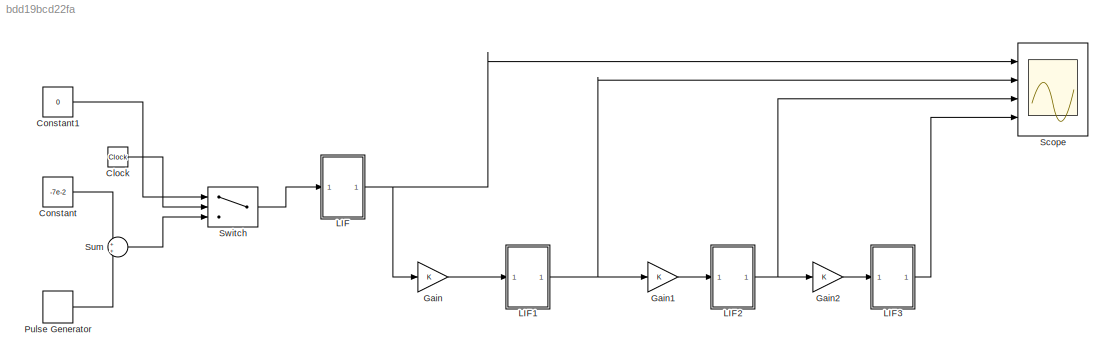
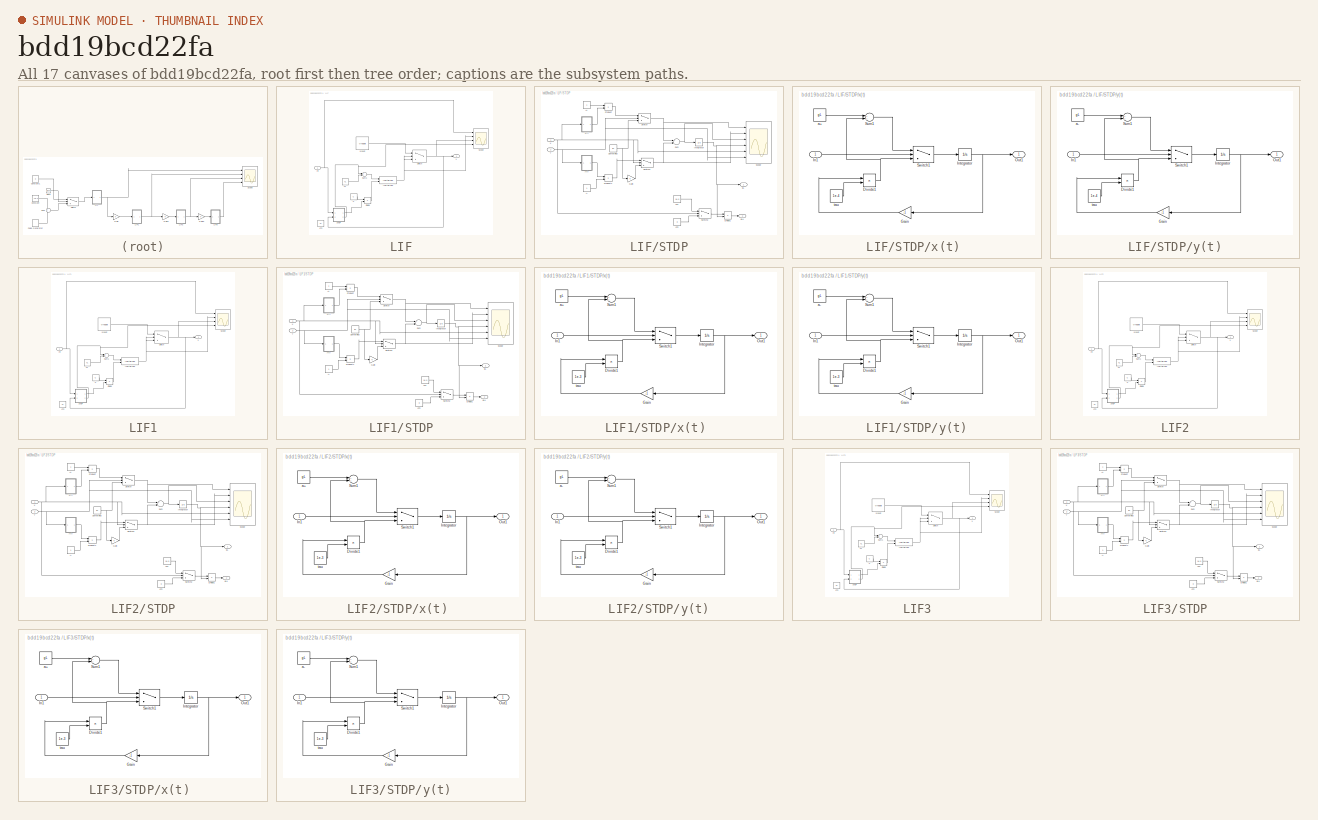
[diagram: thumbnail index - all 17 canvases of the model, root first then tree order]
MODEL slx_bdd19bcd22fa
KIND model
CONFIG AbsTol = auto
CONFIG EnableMultiTasking = off
CONFIG FixedStep = auto
CONFIG MaxStep = auto
CONFIG MinStep = auto
CONFIG RelTol = 1e-3
CONFIG SampleTimeConstraint = Unconstrained
CONFIG Solver = VariableStepAuto
CONFIG SolverName = VariableStepAuto
CONFIG StartTime = 0.0
CONFIG StopTime = 1
BLOCK [Clock] Clock
BLOCK [Constant] Constant
  Value = -7e-2
BLOCK [Constant] Constant1
  Value = 0
BLOCK [Gain] Gain
  OutDataTypeStr = Inherit: Inherit via internal rule
  ParamDataTypeStr = Inherit: Inherit via internal rule
  SaturateOnIntegerOverflow = off
BLOCK [Gain] Gain1
  OutDataTypeStr = Inherit: Inherit via internal rule
  ParamDataTypeStr = Inherit: Inherit via internal rule
  SaturateOnIntegerOverflow = off
BLOCK [Gain] Gain2
  OutDataTypeStr = Inherit: Inherit via internal rule
  ParamDataTypeStr = Inherit: Inherit via internal rule
  SaturateOnIntegerOverflow = off
BLOCK [SubSystem] LIF
  Ports = [1, 1]
  RequestExecContextInheritance = off
BLOCK [Constant] LIF/C
  Value = C
BLOCK [Product] LIF/Divide
  InputSameDT = off
  Inputs = */
  OutDataTypeStr = Inherit: Inherit via internal rule
  Ports = [2, 1]
  RndMeth = Floor
  SaturateOnIntegerOverflow = off
BLOCK [Inport] LIF/Iin
  IconDisplay = Port number
BLOCK [Reference] LIF/Inertial Link  REF=NeuroModelerLibrary/Support/Inertial Link
  Ports = [2, 1]
  SourceBlock = NeuroModelerLibrary/Support/Inertial Link
  SourceType = SubSystem
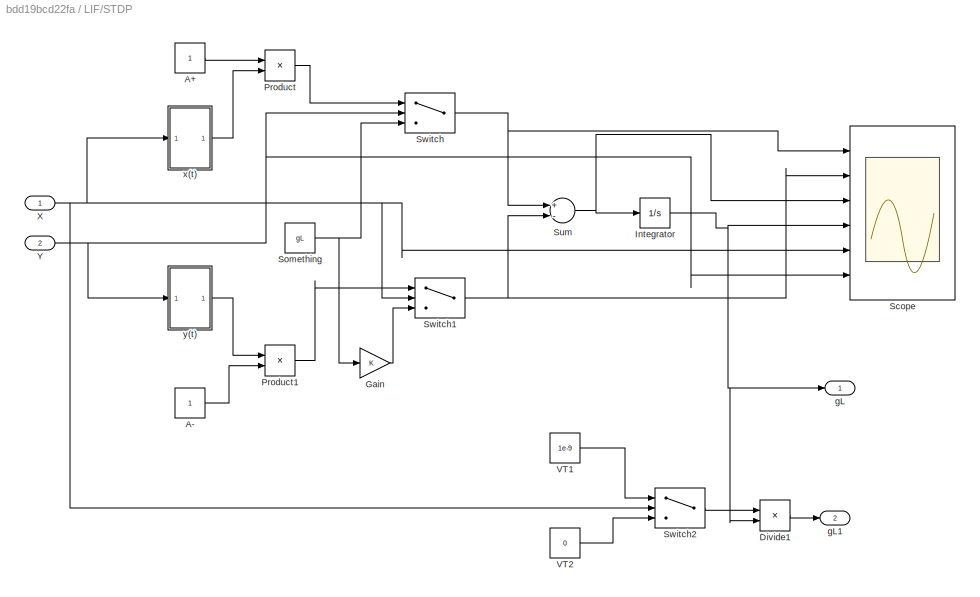
BLOCK [SubSystem] LIF/STDP
  Ports = [2, 2]
  RequestExecContextInheritance = off
BLOCK [Constant] LIF/STDP/A+
BLOCK [Constant] LIF/STDP/A-
BLOCK [Product] LIF/STDP/Divide1
  InputSameDT = off
  Inputs = */
  OutDataTypeStr = Inherit: Inherit via internal rule
  Ports = [2, 1]
  RndMeth = Floor
  SaturateOnIntegerOverflow = off
BLOCK [Gain] LIF/STDP/Gain
  OutDataTypeStr = Inherit: Inherit via internal rule
  ParamDataTypeStr = Inherit: Inherit via internal rule
  SaturateOnIntegerOverflow = off
BLOCK [Integrator] LIF/STDP/Integrator
  InitialCondition = gL
  Ports = [1, 1]
BLOCK [Product] LIF/STDP/Product
  InputSameDT = off
  OutDataTypeStr = Inherit: Inherit via internal rule
  Ports = [2, 1]
  RndMeth = Floor
  SaturateOnIntegerOverflow = off
BLOCK [Product] LIF/STDP/Product1
  InputSameDT = off
  OutDataTypeStr = Inherit: Inherit via internal rule
  Ports = [2, 1]
  RndMeth = Floor
  SaturateOnIntegerOverflow = off
BLOCK [Scope] LIF/STDP/Scope
  Floating = off
  NumInputPorts = 6
  Ports = [6]
  ScopeSpecificationString = Simulink.scopes.TimeScopeBlockCfg('CurrentConfiguration', extmgr.ConfigurationSet(extmgr.Configuration('Core','General UI',true),extmgr.Configuration('Core','Source UI',true),extmgr.Configuration('Sources','WiredSimulink',true,'DataLoggingVariableName','ScopeData1'),extmgr.Configuration('Visuals','Time Domain',true,'SerializedDisplays',{struct('MinYLimReal','-0.000000004','MaxYLimReal','0.00000003...<+5017ch>
BLOCK [Constant] LIF/STDP/Something
  Value = gL
BLOCK [Sum] LIF/STDP/Sum
  InputSameDT = off
  Inputs = +-
  OutDataTypeStr = Inherit: Inherit via internal rule
  Ports = [2, 1]
  SaturateOnIntegerOverflow = off
BLOCK [Switch] LIF/STDP/Switch
  Criteria = u2 > Threshold
  InputSameDT = off
  SaturateOnIntegerOverflow = off
  Threshold = VT
BLOCK [Switch] LIF/STDP/Switch1
  Criteria = u2 > Threshold
  InputSameDT = off
  SaturateOnIntegerOverflow = off
  Threshold = VT
BLOCK [Switch] LIF/STDP/Switch2
  Criteria = u2 > Threshold
  InputSameDT = off
  SaturateOnIntegerOverflow = off
  Threshold = VT
BLOCK [Constant] LIF/STDP/VT1
  Value = 1e-9
BLOCK [Constant] LIF/STDP/VT2
  Value = 0
BLOCK [Inport] LIF/STDP/X
  IconDisplay = Port number
BLOCK [Inport] LIF/STDP/Y
  IconDisplay = Port number
  Port = 2
BLOCK [Outport] LIF/STDP/gL
  IconDisplay = Port number
BLOCK [Outport] LIF/STDP/gL1
  IconDisplay = Port number
  Port = 2
BLOCK [SubSystem] LIF/STDP/x(t) 
  Ports = [1, 1]
  RequestExecContextInheritance = off
BLOCK [Product] LIF/STDP/x(t) /Divide1
  InputSameDT = off
  Inputs = */
  OutDataTypeStr = Inherit: Inherit via internal rule
  Ports = [2, 1]
  RndMeth = Floor
  SaturateOnIntegerOverflow = off
BLOCK [Gain] LIF/STDP/x(t) /Gain
  Gain = -1
  OutDataTypeStr = Inherit: Inherit via internal rule
  ParamDataTypeStr = Inherit: Inherit via internal rule
  SaturateOnIntegerOverflow = off
BLOCK [Inport] LIF/STDP/x(t) /In1
  IconDisplay = Port number
BLOCK [Integrator] LIF/STDP/x(t) /Integrator
  Ports = [1, 1]
BLOCK [Outport] LIF/STDP/x(t) /Out1
  IconDisplay = Port number
BLOCK [Sum] LIF/STDP/x(t) /Sum1
  InputSameDT = off
  OutDataTypeStr = Inherit: Inherit via internal rule
  Ports = [2, 1]
  SaturateOnIntegerOverflow = off
BLOCK [Switch] LIF/STDP/x(t) /Switch1
  Criteria = u2 > Threshold
  InputSameDT = off
  SaturateOnIntegerOverflow = off
  Threshold = VT
BLOCK [Constant] LIF/STDP/x(t) /a+
  Value = gL
BLOCK [Constant] LIF/STDP/x(t) /tau
  Value = 1e-4
BLOCK [SubSystem] LIF/STDP/y(t)
  Ports = [1, 1]
  RequestExecContextInheritance = off
BLOCK [Product] LIF/STDP/y(t)/Divide1
  InputSameDT = off
  Inputs = */
  OutDataTypeStr = Inherit: Inherit via internal rule
  Ports = [2, 1]
  RndMeth = Floor
  SaturateOnIntegerOverflow = off
BLOCK [Gain] LIF/STDP/y(t)/Gain
  Gain = -1
  OutDataTypeStr = Inherit: Inherit via internal rule
  ParamDataTypeStr = Inherit: Inherit via internal rule
  SaturateOnIntegerOverflow = off
BLOCK [Inport] LIF/STDP/y(t)/In1
  IconDisplay = Port number
BLOCK [Integrator] LIF/STDP/y(t)/Integrator
  Ports = [1, 1]
BLOCK [Outport] LIF/STDP/y(t)/Out1
  IconDisplay = Port number
BLOCK [Sum] LIF/STDP/y(t)/Sum1
  InputSameDT = off
  OutDataTypeStr = Inherit: Inherit via internal rule
  Ports = [2, 1]
  SaturateOnIntegerOverflow = off
BLOCK [Switch] LIF/STDP/y(t)/Switch1
  Criteria = u2 > Threshold
  InputSameDT = off
  SaturateOnIntegerOverflow = off
  Threshold = VT
BLOCK [Constant] LIF/STDP/y(t)/a-
  Value = gL
BLOCK [Constant] LIF/STDP/y(t)/tau
  Value = 1e-4
BLOCK [Scope] LIF/Scope
  Floating = off
  NumInputPorts = 4
  Ports = [4]
  ScopeSpecificationString = Simulink.scopes.TimeScopeBlockCfg('CurrentConfiguration', extmgr.ConfigurationSet(extmgr.Configuration('Core','General UI',true),extmgr.Configuration('Core','Source UI',true),extmgr.Configuration('Sources','WiredSimulink',true,'DataLoggingVariableName','ScopeData1'),extmgr.Configuration('Visuals','Time Domain',true,'SerializedDisplays',{struct('MinYLimReal','-0.0825','MaxYLimReal','0.0425','YLabel...<+3446ch>
BLOCK [Sum] LIF/Sum1
  InputSameDT = off
  OutDataTypeStr = Inherit: Inherit via internal rule
  Ports = [2, 1]
  SaturateOnIntegerOverflow = off
BLOCK [Switch] LIF/Switch
  InputSameDT = off
  SaturateOnIntegerOverflow = off
  Threshold = VT
BLOCK [Outport] LIF/V
  IconDisplay = Port number
BLOCK [Constant] LIF/VT
  Value = VL
BLOCK [Constant] LIF/VT2
  Value = VL
BLOCK [Constant] LIF/Vreset
  Value = Vreset
BLOCK [SubSystem] LIF1
  Ports = [1, 1]
  RequestExecContextInheritance = off
BLOCK [Constant] LIF1/C
  Value = C
BLOCK [Product] LIF1/Divide
  InputSameDT = off
  Inputs = */
  OutDataTypeStr = Inherit: Inherit via internal rule
  Ports = [2, 1]
  RndMeth = Floor
  SaturateOnIntegerOverflow = off
BLOCK [Inport] LIF1/Iin
  IconDisplay = Port number
BLOCK [Reference] LIF1/Inertial Link  REF=NeuroModelerLibrary/Support/Inertial Link
  Ports = [2, 1]
  SourceBlock = NeuroModelerLibrary/Support/Inertial Link
  SourceType = SubSystem
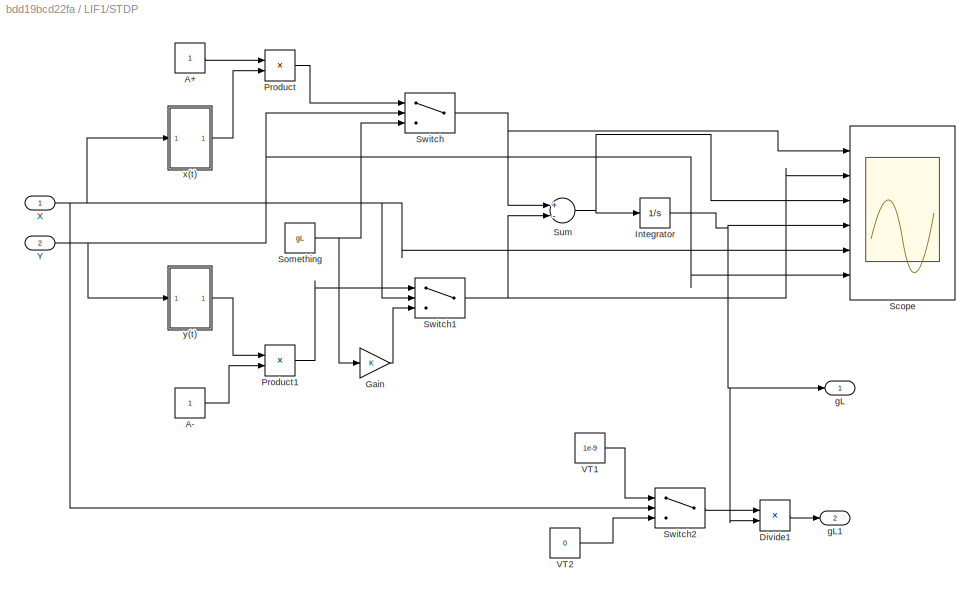
BLOCK [SubSystem] LIF1/STDP
  Ports = [2, 2]
  RequestExecContextInheritance = off
BLOCK [Constant] LIF1/STDP/A+
BLOCK [Constant] LIF1/STDP/A-
BLOCK [Product] LIF1/STDP/Divide1
  InputSameDT = off
  Inputs = */
  OutDataTypeStr = Inherit: Inherit via internal rule
  Ports = [2, 1]
  RndMeth = Floor
  SaturateOnIntegerOverflow = off
BLOCK [Gain] LIF1/STDP/Gain
  OutDataTypeStr = Inherit: Inherit via internal rule
  ParamDataTypeStr = Inherit: Inherit via internal rule
  SaturateOnIntegerOverflow = off
BLOCK [Integrator] LIF1/STDP/Integrator
  InitialCondition = gL
  Ports = [1, 1]
BLOCK [Product] LIF1/STDP/Product
  InputSameDT = off
  OutDataTypeStr = Inherit: Inherit via internal rule
  Ports = [2, 1]
  RndMeth = Floor
  SaturateOnIntegerOverflow = off
BLOCK [Product] LIF1/STDP/Product1
  InputSameDT = off
  OutDataTypeStr = Inherit: Inherit via internal rule
  Ports = [2, 1]
  RndMeth = Floor
  SaturateOnIntegerOverflow = off
BLOCK [Scope] LIF1/STDP/Scope
  Floating = off
  NumInputPorts = 6
  Ports = [6]
  ScopeSpecificationString = Simulink.scopes.TimeScopeBlockCfg('CurrentConfiguration', extmgr.ConfigurationSet(extmgr.Configuration('Core','General UI',true),extmgr.Configuration('Core','Source UI',true),extmgr.Configuration('Sources','WiredSimulink',true,'DataLoggingVariableName','ScopeData1'),extmgr.Configuration('Visuals','Time Domain',true,'SerializedDisplays',{struct('MinYLimReal','-0.0000000004','MaxYLimReal','0.0000000...<+5033ch>  <repeated x3 — deduplicated; at blocks: Scope>
BLOCK [Constant] LIF1/STDP/Something
  Value = gL
BLOCK [Sum] LIF1/STDP/Sum
  InputSameDT = off
  Inputs = +-
  OutDataTypeStr = Inherit: Inherit via internal rule
  Ports = [2, 1]
  SaturateOnIntegerOverflow = off
BLOCK [Switch] LIF1/STDP/Switch
  Criteria = u2 > Threshold
  InputSameDT = off
  SaturateOnIntegerOverflow = off
  Threshold = VT
BLOCK [Switch] LIF1/STDP/Switch1
  Criteria = u2 > Threshold
  InputSameDT = off
  SaturateOnIntegerOverflow = off
  Threshold = VT
BLOCK [Switch] LIF1/STDP/Switch2
  Criteria = u2 > Threshold
  InputSameDT = off
  SaturateOnIntegerOverflow = off
  Threshold = VT
BLOCK [Constant] LIF1/STDP/VT1
  Value = 1e-9
BLOCK [Constant] LIF1/STDP/VT2
  Value = 0
BLOCK [Inport] LIF1/STDP/X
  IconDisplay = Port number
BLOCK [Inport] LIF1/STDP/Y
  IconDisplay = Port number
  Port = 2
BLOCK [Outport] LIF1/STDP/gL
  IconDisplay = Port number
BLOCK [Outport] LIF1/STDP/gL1
  IconDisplay = Port number
  Port = 2
BLOCK [SubSystem] LIF1/STDP/x(t) 
  Ports = [1, 1]
  RequestExecContextInheritance = off
BLOCK [Product] LIF1/STDP/x(t) /Divide1
  InputSameDT = off
  Inputs = */
  OutDataTypeStr = Inherit: Inherit via internal rule
  Ports = [2, 1]
  RndMeth = Floor
  SaturateOnIntegerOverflow = off
BLOCK [Gain] LIF1/STDP/x(t) /Gain
  Gain = -1
  OutDataTypeStr = Inherit: Inherit via internal rule
  ParamDataTypeStr = Inherit: Inherit via internal rule
  SaturateOnIntegerOverflow = off
BLOCK [Inport] LIF1/STDP/x(t) /In1
  IconDisplay = Port number
BLOCK [Integrator] LIF1/STDP/x(t) /Integrator
  Ports = [1, 1]
BLOCK [Outport] LIF1/STDP/x(t) /Out1
  IconDisplay = Port number
BLOCK [Sum] LIF1/STDP/x(t) /Sum1
  InputSameDT = off
  OutDataTypeStr = Inherit: Inherit via internal rule
  Ports = [2, 1]
  SaturateOnIntegerOverflow = off
BLOCK [Switch] LIF1/STDP/x(t) /Switch1
  Criteria = u2 > Threshold
  InputSameDT = off
  SaturateOnIntegerOverflow = off
  Threshold = VT
BLOCK [Constant] LIF1/STDP/x(t) /a+
  Value = gL
BLOCK [Constant] LIF1/STDP/x(t) /tau
  Value = 1e-3
BLOCK [SubSystem] LIF1/STDP/y(t)
  Ports = [1, 1]
  RequestExecContextInheritance = off
BLOCK [Product] LIF1/STDP/y(t)/Divide1
  InputSameDT = off
  Inputs = */
  OutDataTypeStr = Inherit: Inherit via internal rule
  Ports = [2, 1]
  RndMeth = Floor
  SaturateOnIntegerOverflow = off
BLOCK [Gain] LIF1/STDP/y(t)/Gain
  Gain = -1
  OutDataTypeStr = Inherit: Inherit via internal rule
  ParamDataTypeStr = Inherit: Inherit via internal rule
  SaturateOnIntegerOverflow = off
BLOCK [Inport] LIF1/STDP/y(t)/In1
  IconDisplay = Port number
BLOCK [Integrator] LIF1/STDP/y(t)/Integrator
  Ports = [1, 1]
BLOCK [Outport] LIF1/STDP/y(t)/Out1
  IconDisplay = Port number
BLOCK [Sum] LIF1/STDP/y(t)/Sum1
  InputSameDT = off
  OutDataTypeStr = Inherit: Inherit via internal rule
  Ports = [2, 1]
  SaturateOnIntegerOverflow = off
BLOCK [Switch] LIF1/STDP/y(t)/Switch1
  Criteria = u2 > Threshold
  InputSameDT = off
  SaturateOnIntegerOverflow = off
  Threshold = VT
BLOCK [Constant] LIF1/STDP/y(t)/a-
  Value = gL
BLOCK [Constant] LIF1/STDP/y(t)/tau
  Value = 1e-3
BLOCK [Scope] LIF1/Scope
  Floating = off
  NumInputPorts = 4
  Ports = [4]
  ScopeSpecificationString = Simulink.scopes.TimeScopeBlockCfg('CurrentConfiguration', extmgr.ConfigurationSet(extmgr.Configuration('Core','General UI',true),extmgr.Configuration('Core','Source UI',true),extmgr.Configuration('Sources','WiredSimulink',true,'DataLoggingVariableName','ScopeData1'),extmgr.Configuration('Visuals','Time Domain',true,'SerializedDisplays',{struct('MinYLimReal','-0.0825','MaxYLimReal','0.0425','YLabel...<+3447ch>  <repeated x3 — deduplicated; at blocks: Scope>
BLOCK [Sum] LIF1/Sum1
  InputSameDT = off
  OutDataTypeStr = Inherit: Inherit via internal rule
  Ports = [2, 1]
  SaturateOnIntegerOverflow = off
BLOCK [Switch] LIF1/Switch
  InputSameDT = off
  SaturateOnIntegerOverflow = off
  Threshold = VT
BLOCK [Outport] LIF1/V
  IconDisplay = Port number
BLOCK [Constant] LIF1/VT
  Value = VL
BLOCK [Constant] LIF1/VT2
  Value = VL
BLOCK [Constant] LIF1/Vreset
  Value = Vreset
BLOCK [SubSystem] LIF2
  Ports = [1, 1]
  RequestExecContextInheritance = off
BLOCK [Constant] LIF2/C
  Value = C
BLOCK [Product] LIF2/Divide
  InputSameDT = off
  Inputs = */
  OutDataTypeStr = Inherit: Inherit via internal rule
  Ports = [2, 1]
  RndMeth = Floor
  SaturateOnIntegerOverflow = off
BLOCK [Inport] LIF2/Iin
  IconDisplay = Port number
BLOCK [Reference] LIF2/Inertial Link  REF=NeuroModelerLibrary/Support/Inertial Link
  Ports = [2, 1]
  SourceBlock = NeuroModelerLibrary/Support/Inertial Link
  SourceType = SubSystem
BLOCK [SubSystem] LIF2/STDP
  Ports = [2, 2]
  RequestExecContextInheritance = off
BLOCK [Constant] LIF2/STDP/A+
BLOCK [Constant] LIF2/STDP/A-
BLOCK [Product] LIF2/STDP/Divide1
  InputSameDT = off
  Inputs = */
  OutDataTypeStr = Inherit: Inherit via internal rule
  Ports = [2, 1]
  RndMeth = Floor
  SaturateOnIntegerOverflow = off
BLOCK [Gain] LIF2/STDP/Gain
  OutDataTypeStr = Inherit: Inherit via internal rule
  ParamDataTypeStr = Inherit: Inherit via internal rule
  SaturateOnIntegerOverflow = off
BLOCK [Integrator] LIF2/STDP/Integrator
  InitialCondition = gL
  Ports = [1, 1]
BLOCK [Product] LIF2/STDP/Product
  InputSameDT = off
  OutDataTypeStr = Inherit: Inherit via internal rule
  Ports = [2, 1]
  RndMeth = Floor
  SaturateOnIntegerOverflow = off
BLOCK [Product] LIF2/STDP/Product1
  InputSameDT = off
  OutDataTypeStr = Inherit: Inherit via internal rule
  Ports = [2, 1]
  RndMeth = Floor
  SaturateOnIntegerOverflow = off
BLOCK [Scope] LIF2/STDP/Scope
  Floating = off
  NumInputPorts = 6
  Ports = [6]
BLOCK [Constant] LIF2/STDP/Something
  Value = gL
BLOCK [Sum] LIF2/STDP/Sum
  InputSameDT = off
  Inputs = +-
  OutDataTypeStr = Inherit: Inherit via internal rule
  Ports = [2, 1]
  SaturateOnIntegerOverflow = off
BLOCK [Switch] LIF2/STDP/Switch
  Criteria = u2 > Threshold
  InputSameDT = off
  SaturateOnIntegerOverflow = off
  Threshold = VT
BLOCK [Switch] LIF2/STDP/Switch1
  Criteria = u2 > Threshold
  InputSameDT = off
  SaturateOnIntegerOverflow = off
  Threshold = VT
BLOCK [Switch] LIF2/STDP/Switch2
  Criteria = u2 > Threshold
  InputSameDT = off
  SaturateOnIntegerOverflow = off
  Threshold = VT
BLOCK [Constant] LIF2/STDP/VT1
  Value = 1e-9
BLOCK [Constant] LIF2/STDP/VT2
  Value = 0
BLOCK [Inport] LIF2/STDP/X
  IconDisplay = Port number
BLOCK [Inport] LIF2/STDP/Y
  IconDisplay = Port number
  Port = 2
BLOCK [Outport] LIF2/STDP/gL
  IconDisplay = Port number
BLOCK [Outport] LIF2/STDP/gL1
  IconDisplay = Port number
  Port = 2
BLOCK [SubSystem] LIF2/STDP/x(t) 
  Ports = [1, 1]
  RequestExecContextInheritance = off
BLOCK [Product] LIF2/STDP/x(t) /Divide1
  InputSameDT = off
  Inputs = */
  OutDataTypeStr = Inherit: Inherit via internal rule
  Ports = [2, 1]
  RndMeth = Floor
  SaturateOnIntegerOverflow = off
BLOCK [Gain] LIF2/STDP/x(t) /Gain
  Gain = -1
  OutDataTypeStr = Inherit: Inherit via internal rule
  ParamDataTypeStr = Inherit: Inherit via internal rule
  SaturateOnIntegerOverflow = off
BLOCK [Inport] LIF2/STDP/x(t) /In1
  IconDisplay = Port number
BLOCK [Integrator] LIF2/STDP/x(t) /Integrator
  Ports = [1, 1]
BLOCK [Outport] LIF2/STDP/x(t) /Out1
  IconDisplay = Port number
BLOCK [Sum] LIF2/STDP/x(t) /Sum1
  InputSameDT = off
  OutDataTypeStr = Inherit: Inherit via internal rule
  Ports = [2, 1]
  SaturateOnIntegerOverflow = off
BLOCK [Switch] LIF2/STDP/x(t) /Switch1
  Criteria = u2 > Threshold
  InputSameDT = off
  SaturateOnIntegerOverflow = off
  Threshold = VT
BLOCK [Constant] LIF2/STDP/x(t) /a+
  Value = gL
BLOCK [Constant] LIF2/STDP/x(t) /tau
  Value = 1e-3
BLOCK [SubSystem] LIF2/STDP/y(t)
  Ports = [1, 1]
  RequestExecContextInheritance = off
BLOCK [Product] LIF2/STDP/y(t)/Divide1
  InputSameDT = off
  Inputs = */
  OutDataTypeStr = Inherit: Inherit via internal rule
  Ports = [2, 1]
  RndMeth = Floor
  SaturateOnIntegerOverflow = off
BLOCK [Gain] LIF2/STDP/y(t)/Gain
  Gain = -1
  OutDataTypeStr = Inherit: Inherit via internal rule
  ParamDataTypeStr = Inherit: Inherit via internal rule
  SaturateOnIntegerOverflow = off
BLOCK [Inport] LIF2/STDP/y(t)/In1
  IconDisplay = Port number
BLOCK [Integrator] LIF2/STDP/y(t)/Integrator
  Ports = [1, 1]
BLOCK [Outport] LIF2/STDP/y(t)/Out1
  IconDisplay = Port number
BLOCK [Sum] LIF2/STDP/y(t)/Sum1
  InputSameDT = off
  OutDataTypeStr = Inherit: Inherit via internal rule
  Ports = [2, 1]
  SaturateOnIntegerOverflow = off
BLOCK [Switch] LIF2/STDP/y(t)/Switch1
  Criteria = u2 > Threshold
  InputSameDT = off
  SaturateOnIntegerOverflow = off
  Threshold = VT
BLOCK [Constant] LIF2/STDP/y(t)/a-
  Value = gL
BLOCK [Constant] LIF2/STDP/y(t)/tau
  Value = 1e-3
BLOCK [Scope] LIF2/Scope
  Floating = off
  NumInputPorts = 4
  Ports = [4]
BLOCK [Sum] LIF2/Sum1
  InputSameDT = off
  OutDataTypeStr = Inherit: Inherit via internal rule
  Ports = [2, 1]
  SaturateOnIntegerOverflow = off
BLOCK [Switch] LIF2/Switch
  InputSameDT = off
  SaturateOnIntegerOverflow = off
  Threshold = VT
BLOCK [Outport] LIF2/V
  IconDisplay = Port number
BLOCK [Constant] LIF2/VT
  Value = VL
BLOCK [Constant] LIF2/VT2
  Value = VL
BLOCK [Constant] LIF2/Vreset
  Value = Vreset
BLOCK [SubSystem] LIF3
  Ports = [1, 1]
  RequestExecContextInheritance = off
BLOCK [Constant] LIF3/C
  Value = C
BLOCK [Product] LIF3/Divide
  InputSameDT = off
  Inputs = */
  OutDataTypeStr = Inherit: Inherit via internal rule
  Ports = [2, 1]
  RndMeth = Floor
  SaturateOnIntegerOverflow = off
BLOCK [Inport] LIF3/Iin
  IconDisplay = Port number
BLOCK [Reference] LIF3/Inertial Link  REF=NeuroModelerLibrary/Support/Inertial Link
  Ports = [2, 1]
  SourceBlock = NeuroModelerLibrary/Support/Inertial Link
  SourceType = SubSystem
BLOCK [SubSystem] LIF3/STDP
  Ports = [2, 2]
  RequestExecContextInheritance = off
BLOCK [Constant] LIF3/STDP/A+
BLOCK [Constant] LIF3/STDP/A-
BLOCK [Product] LIF3/STDP/Divide1
  InputSameDT = off
  Inputs = */
  OutDataTypeStr = Inherit: Inherit via internal rule
  Ports = [2, 1]
  RndMeth = Floor
  SaturateOnIntegerOverflow = off
BLOCK [Gain] LIF3/STDP/Gain
  OutDataTypeStr = Inherit: Inherit via internal rule
  ParamDataTypeStr = Inherit: Inherit via internal rule
  SaturateOnIntegerOverflow = off
BLOCK [Integrator] LIF3/STDP/Integrator
  InitialCondition = gL
  Ports = [1, 1]
BLOCK [Product] LIF3/STDP/Product
  InputSameDT = off
  OutDataTypeStr = Inherit: Inherit via internal rule
  Ports = [2, 1]
  RndMeth = Floor
  SaturateOnIntegerOverflow = off
BLOCK [Product] LIF3/STDP/Product1
  InputSameDT = off
  OutDataTypeStr = Inherit: Inherit via internal rule
  Ports = [2, 1]
  RndMeth = Floor
  SaturateOnIntegerOverflow = off
BLOCK [Scope] LIF3/STDP/Scope
  Floating = off
  NumInputPorts = 6
  Ports = [6]
BLOCK [Constant] LIF3/STDP/Something
  Value = gL
BLOCK [Sum] LIF3/STDP/Sum
  InputSameDT = off
  Inputs = +-
  OutDataTypeStr = Inherit: Inherit via internal rule
  Ports = [2, 1]
  SaturateOnIntegerOverflow = off
BLOCK [Switch] LIF3/STDP/Switch
  Criteria = u2 > Threshold
  InputSameDT = off
  SaturateOnIntegerOverflow = off
  Threshold = VT
BLOCK [Switch] LIF3/STDP/Switch1
  Criteria = u2 > Threshold
  InputSameDT = off
  SaturateOnIntegerOverflow = off
  Threshold = VT
BLOCK [Switch] LIF3/STDP/Switch2
  Criteria = u2 > Threshold
  InputSameDT = off
  SaturateOnIntegerOverflow = off
  Threshold = VT
BLOCK [Constant] LIF3/STDP/VT1
  Value = 1e-9
BLOCK [Constant] LIF3/STDP/VT2
  Value = 0
BLOCK [Inport] LIF3/STDP/X
  IconDisplay = Port number
BLOCK [Inport] LIF3/STDP/Y
  IconDisplay = Port number
  Port = 2
BLOCK [Outport] LIF3/STDP/gL
  IconDisplay = Port number
BLOCK [Outport] LIF3/STDP/gL1
  IconDisplay = Port number
  Port = 2
BLOCK [SubSystem] LIF3/STDP/x(t) 
  Ports = [1, 1]
  RequestExecContextInheritance = off
BLOCK [Product] LIF3/STDP/x(t) /Divide1
  InputSameDT = off
  Inputs = */
  OutDataTypeStr = Inherit: Inherit via internal rule
  Ports = [2, 1]
  RndMeth = Floor
  SaturateOnIntegerOverflow = off
BLOCK [Gain] LIF3/STDP/x(t) /Gain
  Gain = -1
  OutDataTypeStr = Inherit: Inherit via internal rule
  ParamDataTypeStr = Inherit: Inherit via internal rule
  SaturateOnIntegerOverflow = off
BLOCK [Inport] LIF3/STDP/x(t) /In1
  IconDisplay = Port number
BLOCK [Integrator] LIF3/STDP/x(t) /Integrator
  Ports = [1, 1]
BLOCK [Outport] LIF3/STDP/x(t) /Out1
  IconDisplay = Port number
BLOCK [Sum] LIF3/STDP/x(t) /Sum1
  InputSameDT = off
  OutDataTypeStr = Inherit: Inherit via internal rule
  Ports = [2, 1]
  SaturateOnIntegerOverflow = off
BLOCK [Switch] LIF3/STDP/x(t) /Switch1
  Criteria = u2 > Threshold
  InputSameDT = off
  SaturateOnIntegerOverflow = off
  Threshold = VT
BLOCK [Constant] LIF3/STDP/x(t) /a+
  Value = gL
BLOCK [Constant] LIF3/STDP/x(t) /tau
  Value = 1e-3
BLOCK [SubSystem] LIF3/STDP/y(t)
  Ports = [1, 1]
  RequestExecContextInheritance = off
BLOCK [Product] LIF3/STDP/y(t)/Divide1
  InputSameDT = off
  Inputs = */
  OutDataTypeStr = Inherit: Inherit via internal rule
  Ports = [2, 1]
  RndMeth = Floor
  SaturateOnIntegerOverflow = off
BLOCK [Gain] LIF3/STDP/y(t)/Gain
  Gain = -1
  OutDataTypeStr = Inherit: Inherit via internal rule
  ParamDataTypeStr = Inherit: Inherit via internal rule
  SaturateOnIntegerOverflow = off
BLOCK [Inport] LIF3/STDP/y(t)/In1
  IconDisplay = Port number
BLOCK [Integrator] LIF3/STDP/y(t)/Integrator
  Ports = [1, 1]
BLOCK [Outport] LIF3/STDP/y(t)/Out1
  IconDisplay = Port number
BLOCK [Sum] LIF3/STDP/y(t)/Sum1
  InputSameDT = off
  OutDataTypeStr = Inherit: Inherit via internal rule
  Ports = [2, 1]
  SaturateOnIntegerOverflow = off
BLOCK [Switch] LIF3/STDP/y(t)/Switch1
  Criteria = u2 > Threshold
  InputSameDT = off
  SaturateOnIntegerOverflow = off
  Threshold = VT
BLOCK [Constant] LIF3/STDP/y(t)/a-
  Value = gL
BLOCK [Constant] LIF3/STDP/y(t)/tau
  Value = 1e-3
BLOCK [Scope] LIF3/Scope
  Floating = off
  NumInputPorts = 4
  Ports = [4]
BLOCK [Sum] LIF3/Sum1
  InputSameDT = off
  OutDataTypeStr = Inherit: Inherit via internal rule
  Ports = [2, 1]
  SaturateOnIntegerOverflow = off
BLOCK [Switch] LIF3/Switch
  InputSameDT = off
  SaturateOnIntegerOverflow = off
  Threshold = VT
BLOCK [Outport] LIF3/V
  IconDisplay = Port number
BLOCK [Constant] LIF3/VT
  Value = VL
BLOCK [Constant] LIF3/VT2
  Value = VL
BLOCK [Constant] LIF3/Vreset
  Value = Vreset
BLOCK [DiscretePulseGenerator] Pulse Generator
  Amplitude = 0.1
  Period = 0.1
  Ports = [0, 1]
  PulseType = Time based
BLOCK [Scope] Scope
  Floating = off
  NumInputPorts = 4
  Ports = [4]
  ScopeSpecificationString = Simulink.scopes.TimeScopeBlockCfg('CurrentConfiguration', extmgr.ConfigurationSet(extmgr.Configuration('Core','General UI',true),extmgr.Configuration('Core','Source UI',true),extmgr.Configuration('Sources','WiredSimulink',true),extmgr.Configuration('Visuals','Time Domain',true,'SerializedDisplays',{struct('MinYLimReal','-0.0825','MaxYLimReal','0.0425','YLabelReal','','MinYLimMag','0.00000','MaxYLi...<+3486ch>
BLOCK [Sum] Sum
  IconShape = round
  InputSameDT = off
  OutDataTypeStr = Inherit: Inherit via internal rule
  Ports = [2, 1]
  SaturateOnIntegerOverflow = off
BLOCK [Switch] Switch
  Criteria = u2 > Threshold
  InputSameDT = off
  SaturateOnIntegerOverflow = off
  Threshold = 100
LINE Clock:1 -> Switch:2
LINE Constant1:1 -> Switch:1
LINE Constant:1 -> Sum:1
LINE Gain1:1 -> LIF2:1
LINE Gain2:1 -> LIF3:1
LINE Gain:1 -> LIF1:1
LINE LIF/C:1 -> LIF/Divide:1
LINE LIF/Divide:1 -> LIF/Inertial Link:2
NET LIF/Iin:1 -> LIF/STDP:1, LIF/Scope:1
NET LIF/Inertial Link:1 -> LIF/Scope:2, LIF/Switch:2, LIF/Switch:3
LINE LIF/STDP/A+:1 -> LIF/STDP/Product:1
LINE LIF/STDP/A-:1 -> LIF/STDP/Product1:2
LINE LIF/STDP/Divide1:1 -> LIF/STDP/gL1:1
LINE LIF/STDP/Gain:1 -> LIF/STDP/Switch1:3
NET LIF/STDP/Integrator:1 -> LIF/STDP/Divide1:2, LIF/STDP/Scope:4, LIF/STDP/gL:1
LINE LIF/STDP/Product1:1 -> LIF/STDP/Switch1:1
LINE LIF/STDP/Product:1 -> LIF/STDP/Switch:1
NET LIF/STDP/Something:1 -> LIF/STDP/Gain:1, LIF/STDP/Switch:3
NET LIF/STDP/Sum:1 -> LIF/STDP/Integrator:1, LIF/STDP/Scope:3
NET LIF/STDP/Switch1:1 -> LIF/STDP/Scope:2, LIF/STDP/Sum:2
LINE LIF/STDP/Switch2:1 -> LIF/STDP/Divide1:1
NET LIF/STDP/Switch:1 -> LIF/STDP/Scope:1, LIF/STDP/Sum:1
LINE LIF/STDP/VT1:1 -> LIF/STDP/Switch2:1
LINE LIF/STDP/VT2:1 -> LIF/STDP/Switch2:3
NET LIF/STDP/X:1 -> LIF/STDP/Scope:5, LIF/STDP/Switch1:2, LIF/STDP/Switch2:2, LIF/STDP/x(t) :1
NET LIF/STDP/Y:1 -> LIF/STDP/Scope:6, LIF/STDP/Switch:2, LIF/STDP/y(t):1
NET LIF/STDP/x(t) /Divide1:1 -> LIF/STDP/x(t) /Sum1:2, LIF/STDP/x(t) /Switch1:3
LINE LIF/STDP/x(t) /Gain:1 -> LIF/STDP/x(t) /Divide1:1
LINE LIF/STDP/x(t) /In1:1 -> LIF/STDP/x(t) /Switch1:2
NET LIF/STDP/x(t) /Integrator:1 -> LIF/STDP/x(t) /Gain:1, LIF/STDP/x(t) /Out1:1
LINE LIF/STDP/x(t) /Sum1:1 -> LIF/STDP/x(t) /Switch1:1
LINE LIF/STDP/x(t) /Switch1:1 -> LIF/STDP/x(t) /Integrator:1
LINE LIF/STDP/x(t) /a+:1 -> LIF/STDP/x(t) /Sum1:1
LINE LIF/STDP/x(t) /tau:1 -> LIF/STDP/x(t) /Divide1:2
LINE LIF/STDP/x(t) :1 -> LIF/STDP/Product:2
NET LIF/STDP/y(t)/Divide1:1 -> LIF/STDP/y(t)/Sum1:2, LIF/STDP/y(t)/Switch1:3
LINE LIF/STDP/y(t)/Gain:1 -> LIF/STDP/y(t)/Divide1:1
LINE LIF/STDP/y(t)/In1:1 -> LIF/STDP/y(t)/Switch1:2
NET LIF/STDP/y(t)/Integrator:1 -> LIF/STDP/y(t)/Gain:1, LIF/STDP/y(t)/Out1:1
LINE LIF/STDP/y(t)/Sum1:1 -> LIF/STDP/y(t)/Switch1:1
LINE LIF/STDP/y(t)/Switch1:1 -> LIF/STDP/y(t)/Integrator:1
LINE LIF/STDP/y(t)/a-:1 -> LIF/STDP/y(t)/Sum1:1
LINE LIF/STDP/y(t)/tau:1 -> LIF/STDP/y(t)/Divide1:2
LINE LIF/STDP/y(t):1 -> LIF/STDP/Product1:1
LINE LIF/STDP:1 -> LIF/Divide:2
NET LIF/STDP:2 -> LIF/Scope:4, LIF/Sum1:1
LINE LIF/Sum1:1 -> LIF/Inertial Link:1
NET LIF/Switch:1 -> LIF/STDP:2, LIF/Scope:3, LIF/V:1
LINE LIF/VT:1 -> LIF/Sum1:2
LINE LIF/Vreset:1 -> LIF/Switch:1
LINE LIF1/C:1 -> LIF1/Divide:1
LINE LIF1/Divide:1 -> LIF1/Inertial Link:2
NET LIF1/Iin:1 -> LIF1/STDP:1, LIF1/Scope:1
NET LIF1/Inertial Link:1 -> LIF1/Scope:2, LIF1/Switch:2, LIF1/Switch:3
LINE LIF1/STDP/A+:1 -> LIF1/STDP/Product:1
LINE LIF1/STDP/A-:1 -> LIF1/STDP/Product1:2
LINE LIF1/STDP/Divide1:1 -> LIF1/STDP/gL1:1
LINE LIF1/STDP/Gain:1 -> LIF1/STDP/Switch1:3
NET LIF1/STDP/Integrator:1 -> LIF1/STDP/Divide1:2, LIF1/STDP/Scope:4, LIF1/STDP/gL:1
LINE LIF1/STDP/Product1:1 -> LIF1/STDP/Switch1:1
LINE LIF1/STDP/Product:1 -> LIF1/STDP/Switch:1
NET LIF1/STDP/Something:1 -> LIF1/STDP/Gain:1, LIF1/STDP/Switch:3
NET LIF1/STDP/Sum:1 -> LIF1/STDP/Integrator:1, LIF1/STDP/Scope:3
NET LIF1/STDP/Switch1:1 -> LIF1/STDP/Scope:2, LIF1/STDP/Sum:2
LINE LIF1/STDP/Switch2:1 -> LIF1/STDP/Divide1:1
NET LIF1/STDP/Switch:1 -> LIF1/STDP/Scope:1, LIF1/STDP/Sum:1
LINE LIF1/STDP/VT1:1 -> LIF1/STDP/Switch2:1
LINE LIF1/STDP/VT2:1 -> LIF1/STDP/Switch2:3
NET LIF1/STDP/X:1 -> LIF1/STDP/Scope:5, LIF1/STDP/Switch1:2, LIF1/STDP/Switch2:2, LIF1/STDP/x(t) :1
NET LIF1/STDP/Y:1 -> LIF1/STDP/Scope:6, LIF1/STDP/Switch:2, LIF1/STDP/y(t):1
NET LIF1/STDP/x(t) /Divide1:1 -> LIF1/STDP/x(t) /Sum1:2, LIF1/STDP/x(t) /Switch1:3
LINE LIF1/STDP/x(t) /Gain:1 -> LIF1/STDP/x(t) /Divide1:1
LINE LIF1/STDP/x(t) /In1:1 -> LIF1/STDP/x(t) /Switch1:2
NET LIF1/STDP/x(t) /Integrator:1 -> LIF1/STDP/x(t) /Gain:1, LIF1/STDP/x(t) /Out1:1
LINE LIF1/STDP/x(t) /Sum1:1 -> LIF1/STDP/x(t) /Switch1:1
LINE LIF1/STDP/x(t) /Switch1:1 -> LIF1/STDP/x(t) /Integrator:1
LINE LIF1/STDP/x(t) /a+:1 -> LIF1/STDP/x(t) /Sum1:1
LINE LIF1/STDP/x(t) /tau:1 -> LIF1/STDP/x(t) /Divide1:2
LINE LIF1/STDP/x(t) :1 -> LIF1/STDP/Product:2
NET LIF1/STDP/y(t)/Divide1:1 -> LIF1/STDP/y(t)/Sum1:2, LIF1/STDP/y(t)/Switch1:3
LINE LIF1/STDP/y(t)/Gain:1 -> LIF1/STDP/y(t)/Divide1:1
LINE LIF1/STDP/y(t)/In1:1 -> LIF1/STDP/y(t)/Switch1:2
NET LIF1/STDP/y(t)/Integrator:1 -> LIF1/STDP/y(t)/Gain:1, LIF1/STDP/y(t)/Out1:1
LINE LIF1/STDP/y(t)/Sum1:1 -> LIF1/STDP/y(t)/Switch1:1
LINE LIF1/STDP/y(t)/Switch1:1 -> LIF1/STDP/y(t)/Integrator:1
LINE LIF1/STDP/y(t)/a-:1 -> LIF1/STDP/y(t)/Sum1:1
LINE LIF1/STDP/y(t)/tau:1 -> LIF1/STDP/y(t)/Divide1:2
LINE LIF1/STDP/y(t):1 -> LIF1/STDP/Product1:1
LINE LIF1/STDP:1 -> LIF1/Divide:2
NET LIF1/STDP:2 -> LIF1/Scope:4, LIF1/Sum1:1
LINE LIF1/Sum1:1 -> LIF1/Inertial Link:1
NET LIF1/Switch:1 -> LIF1/STDP:2, LIF1/Scope:3, LIF1/V:1
LINE LIF1/VT:1 -> LIF1/Sum1:2
LINE LIF1/Vreset:1 -> LIF1/Switch:1
NET LIF1:1 -> Gain1:1, Scope:2
LINE LIF2/C:1 -> LIF2/Divide:1
LINE LIF2/Divide:1 -> LIF2/Inertial Link:2
NET LIF2/Iin:1 -> LIF2/STDP:1, LIF2/Scope:1
NET LIF2/Inertial Link:1 -> LIF2/Scope:2, LIF2/Switch:2, LIF2/Switch:3
LINE LIF2/STDP/A+:1 -> LIF2/STDP/Product:1
LINE LIF2/STDP/A-:1 -> LIF2/STDP/Product1:2
LINE LIF2/STDP/Divide1:1 -> LIF2/STDP/gL1:1
LINE LIF2/STDP/Gain:1 -> LIF2/STDP/Switch1:3
NET LIF2/STDP/Integrator:1 -> LIF2/STDP/Divide1:2, LIF2/STDP/Scope:4, LIF2/STDP/gL:1
LINE LIF2/STDP/Product1:1 -> LIF2/STDP/Switch1:1
LINE LIF2/STDP/Product:1 -> LIF2/STDP/Switch:1
NET LIF2/STDP/Something:1 -> LIF2/STDP/Gain:1, LIF2/STDP/Switch:3
NET LIF2/STDP/Sum:1 -> LIF2/STDP/Integrator:1, LIF2/STDP/Scope:3
NET LIF2/STDP/Switch1:1 -> LIF2/STDP/Scope:2, LIF2/STDP/Sum:2
LINE LIF2/STDP/Switch2:1 -> LIF2/STDP/Divide1:1
NET LIF2/STDP/Switch:1 -> LIF2/STDP/Scope:1, LIF2/STDP/Sum:1
LINE LIF2/STDP/VT1:1 -> LIF2/STDP/Switch2:1
LINE LIF2/STDP/VT2:1 -> LIF2/STDP/Switch2:3
NET LIF2/STDP/X:1 -> LIF2/STDP/Scope:5, LIF2/STDP/Switch1:2, LIF2/STDP/Switch2:2, LIF2/STDP/x(t) :1
NET LIF2/STDP/Y:1 -> LIF2/STDP/Scope:6, LIF2/STDP/Switch:2, LIF2/STDP/y(t):1
NET LIF2/STDP/x(t) /Divide1:1 -> LIF2/STDP/x(t) /Sum1:2, LIF2/STDP/x(t) /Switch1:3
LINE LIF2/STDP/x(t) /Gain:1 -> LIF2/STDP/x(t) /Divide1:1
LINE LIF2/STDP/x(t) /In1:1 -> LIF2/STDP/x(t) /Switch1:2
NET LIF2/STDP/x(t) /Integrator:1 -> LIF2/STDP/x(t) /Gain:1, LIF2/STDP/x(t) /Out1:1
LINE LIF2/STDP/x(t) /Sum1:1 -> LIF2/STDP/x(t) /Switch1:1
LINE LIF2/STDP/x(t) /Switch1:1 -> LIF2/STDP/x(t) /Integrator:1
LINE LIF2/STDP/x(t) /a+:1 -> LIF2/STDP/x(t) /Sum1:1
LINE LIF2/STDP/x(t) /tau:1 -> LIF2/STDP/x(t) /Divide1:2
LINE LIF2/STDP/x(t) :1 -> LIF2/STDP/Product:2
NET LIF2/STDP/y(t)/Divide1:1 -> LIF2/STDP/y(t)/Sum1:2, LIF2/STDP/y(t)/Switch1:3
LINE LIF2/STDP/y(t)/Gain:1 -> LIF2/STDP/y(t)/Divide1:1
LINE LIF2/STDP/y(t)/In1:1 -> LIF2/STDP/y(t)/Switch1:2
NET LIF2/STDP/y(t)/Integrator:1 -> LIF2/STDP/y(t)/Gain:1, LIF2/STDP/y(t)/Out1:1
LINE LIF2/STDP/y(t)/Sum1:1 -> LIF2/STDP/y(t)/Switch1:1
LINE LIF2/STDP/y(t)/Switch1:1 -> LIF2/STDP/y(t)/Integrator:1
LINE LIF2/STDP/y(t)/a-:1 -> LIF2/STDP/y(t)/Sum1:1
LINE LIF2/STDP/y(t)/tau:1 -> LIF2/STDP/y(t)/Divide1:2
LINE LIF2/STDP/y(t):1 -> LIF2/STDP/Product1:1
LINE LIF2/STDP:1 -> LIF2/Divide:2
NET LIF2/STDP:2 -> LIF2/Scope:4, LIF2/Sum1:1
LINE LIF2/Sum1:1 -> LIF2/Inertial Link:1
NET LIF2/Switch:1 -> LIF2/STDP:2, LIF2/Scope:3, LIF2/V:1
LINE LIF2/VT:1 -> LIF2/Sum1:2
LINE LIF2/Vreset:1 -> LIF2/Switch:1
NET LIF2:1 -> Gain2:1, Scope:3
LINE LIF3/C:1 -> LIF3/Divide:1
LINE LIF3/Divide:1 -> LIF3/Inertial Link:2
NET LIF3/Iin:1 -> LIF3/STDP:1, LIF3/Scope:1
NET LIF3/Inertial Link:1 -> LIF3/Scope:2, LIF3/Switch:2, LIF3/Switch:3
LINE LIF3/STDP/A+:1 -> LIF3/STDP/Product:1
LINE LIF3/STDP/A-:1 -> LIF3/STDP/Product1:2
LINE LIF3/STDP/Divide1:1 -> LIF3/STDP/gL1:1
LINE LIF3/STDP/Gain:1 -> LIF3/STDP/Switch1:3
NET LIF3/STDP/Integrator:1 -> LIF3/STDP/Divide1:2, LIF3/STDP/Scope:4, LIF3/STDP/gL:1
LINE LIF3/STDP/Product1:1 -> LIF3/STDP/Switch1:1
LINE LIF3/STDP/Product:1 -> LIF3/STDP/Switch:1
NET LIF3/STDP/Something:1 -> LIF3/STDP/Gain:1, LIF3/STDP/Switch:3
NET LIF3/STDP/Sum:1 -> LIF3/STDP/Integrator:1, LIF3/STDP/Scope:3
NET LIF3/STDP/Switch1:1 -> LIF3/STDP/Scope:2, LIF3/STDP/Sum:2
LINE LIF3/STDP/Switch2:1 -> LIF3/STDP/Divide1:1
NET LIF3/STDP/Switch:1 -> LIF3/STDP/Scope:1, LIF3/STDP/Sum:1
LINE LIF3/STDP/VT1:1 -> LIF3/STDP/Switch2:1
LINE LIF3/STDP/VT2:1 -> LIF3/STDP/Switch2:3
NET LIF3/STDP/X:1 -> LIF3/STDP/Scope:5, LIF3/STDP/Switch1:2, LIF3/STDP/Switch2:2, LIF3/STDP/x(t) :1
NET LIF3/STDP/Y:1 -> LIF3/STDP/Scope:6, LIF3/STDP/Switch:2, LIF3/STDP/y(t):1
NET LIF3/STDP/x(t) /Divide1:1 -> LIF3/STDP/x(t) /Sum1:2, LIF3/STDP/x(t) /Switch1:3
LINE LIF3/STDP/x(t) /Gain:1 -> LIF3/STDP/x(t) /Divide1:1
LINE LIF3/STDP/x(t) /In1:1 -> LIF3/STDP/x(t) /Switch1:2
NET LIF3/STDP/x(t) /Integrator:1 -> LIF3/STDP/x(t) /Gain:1, LIF3/STDP/x(t) /Out1:1
LINE LIF3/STDP/x(t) /Sum1:1 -> LIF3/STDP/x(t) /Switch1:1
LINE LIF3/STDP/x(t) /Switch1:1 -> LIF3/STDP/x(t) /Integrator:1
LINE LIF3/STDP/x(t) /a+:1 -> LIF3/STDP/x(t) /Sum1:1
LINE LIF3/STDP/x(t) /tau:1 -> LIF3/STDP/x(t) /Divide1:2
LINE LIF3/STDP/x(t) :1 -> LIF3/STDP/Product:2
NET LIF3/STDP/y(t)/Divide1:1 -> LIF3/STDP/y(t)/Sum1:2, LIF3/STDP/y(t)/Switch1:3
LINE LIF3/STDP/y(t)/Gain:1 -> LIF3/STDP/y(t)/Divide1:1
LINE LIF3/STDP/y(t)/In1:1 -> LIF3/STDP/y(t)/Switch1:2
NET LIF3/STDP/y(t)/Integrator:1 -> LIF3/STDP/y(t)/Gain:1, LIF3/STDP/y(t)/Out1:1
LINE LIF3/STDP/y(t)/Sum1:1 -> LIF3/STDP/y(t)/Switch1:1
LINE LIF3/STDP/y(t)/Switch1:1 -> LIF3/STDP/y(t)/Integrator:1
LINE LIF3/STDP/y(t)/a-:1 -> LIF3/STDP/y(t)/Sum1:1
LINE LIF3/STDP/y(t)/tau:1 -> LIF3/STDP/y(t)/Divide1:2
LINE LIF3/STDP/y(t):1 -> LIF3/STDP/Product1:1
LINE LIF3/STDP:1 -> LIF3/Divide:2
NET LIF3/STDP:2 -> LIF3/Scope:4, LIF3/Sum1:1
LINE LIF3/Sum1:1 -> LIF3/Inertial Link:1
NET LIF3/Switch:1 -> LIF3/STDP:2, LIF3/Scope:3, LIF3/V:1
LINE LIF3/VT:1 -> LIF3/Sum1:2
LINE LIF3/Vreset:1 -> LIF3/Switch:1
LINE LIF3:1 -> Scope:4
NET LIF:1 -> Gain:1, Scope:1
LINE Pulse Generator:1 -> Sum:2
LINE Sum:1 -> Switch:3
LINE Switch:1 -> LIF:1
note: NET lines group one-source signal fan-out (src -> all destinations, sorted); 1:1 wires keep LINE
